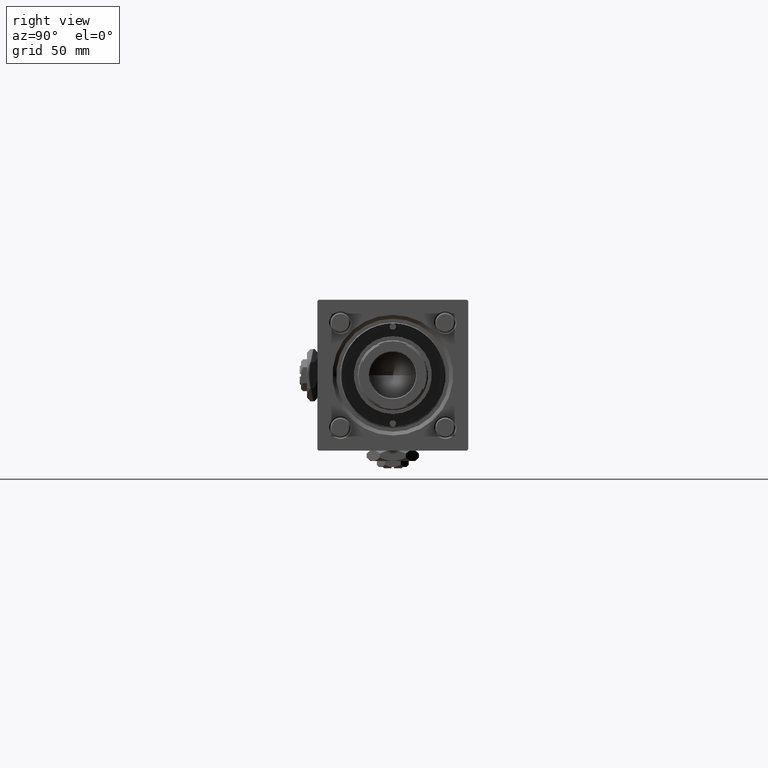
[diagram: clean part render]
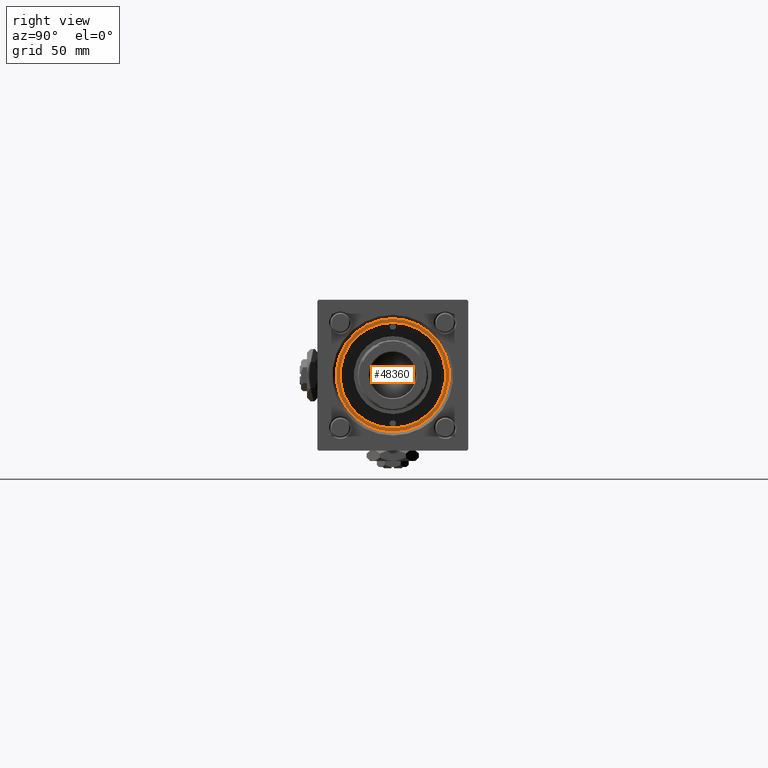
[diagram: same view with one face highlighted and labeled with its STEP entity id]
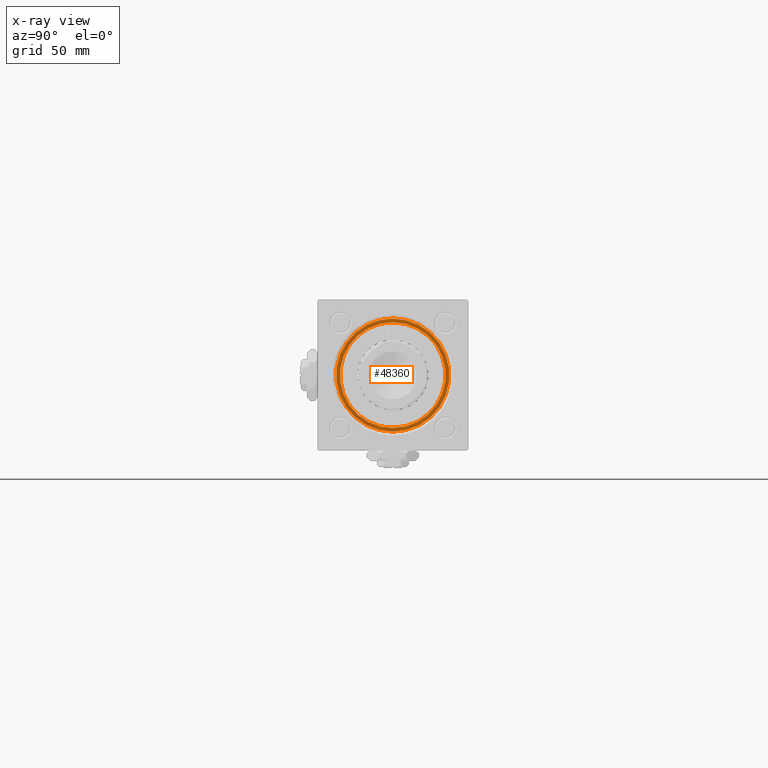
[diagram: x-ray of the same camera — body ghosted, the highlighted face saturated]
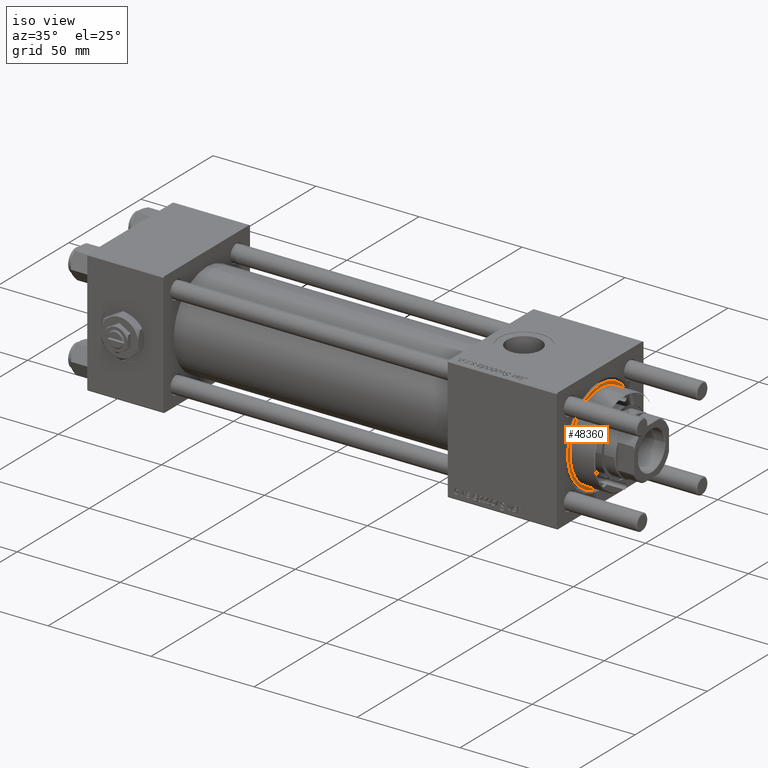
[diagram: same view with one face highlighted and labeled with its STEP entity id]
A machine part, right view. The second image highlights one B-rep face of the part: STEP entity #48360.
The next image is the same camera in x-ray: the body ghosted, the highlighted face saturated — about 0% of this face is hidden behind the body in this view.
A second angle (iso view) of the same face is appended — the face is thin or edge-on in the first view.
In plain terms, the highlighted planar face has unit normal (1, 0, 0).
Its self-contained STEP definition (entity closure, byte-faithful):
#895 = EDGE_CURVE ( 'NONE', #32073, #26112, #52382, .T. ) ;
#1696 = EDGE_CURVE ( 'NONE', #26112, #32073, #19960, .T. ) ;
#2712 = CARTESIAN_POINT ( 'NONE',  ( -21.00000000000000000, 0.000000000000000000, 28.69999999999999929 ) ) ;
#3218 = DIRECTION ( 'NONE',  ( 1.000000000000000000, 0.000000000000000000, 0.000000000000000000 ) ) ;
#7231 = CARTESIAN_POINT ( 'NONE',  ( 0.000000000000000000, 0.000000000000000000, 28.69999999999999929 ) ) ;
#9092 = VERTEX_POINT ( 'NONE', #50476 ) ;
#12176 = CARTESIAN_POINT ( 'NONE',  ( 0.000000000000000000, 0.000000000000000000, 28.69999999999999929 ) ) ;
#12517 = ORIENTED_EDGE ( 'NONE', *, *, #895, .F. ) ;
#13531 = CARTESIAN_POINT ( 'NONE',  ( 0.000000000000000000, 0.000000000000000000, 28.69999999999999929 ) ) ;
#18390 = CARTESIAN_POINT ( 'NONE',  ( 22.50000000000000355, 2.755455298081545172E-15, 28.69999999999999929 ) ) ;
#19960 = CIRCLE ( 'NONE', #27604, 21.00000000000000000 ) ;
#20357 = FACE_BOUND ( 'NONE', #45788, .T. ) ;
#20709 = AXIS2_PLACEMENT_3D ( 'NONE', #13531, #22196, #50214 ) ;
#22196 = DIRECTION ( 'NONE',  ( 0.000000000000000000, 0.000000000000000000, 1.000000000000000000 ) ) ;
#25443 = DIRECTION ( 'NONE',  ( 0.000000000000000000, 0.000000000000000000, 1.000000000000000000 ) ) ;
#26112 = VERTEX_POINT ( 'NONE', #49429 ) ;
#26682 = DIRECTION ( 'NONE',  ( 0.000000000000000000, 0.000000000000000000, 1.000000000000000000 ) ) ;
#27604 = AXIS2_PLACEMENT_3D ( 'NONE', #51881, #43830, #38766 ) ;
#30863 = DIRECTION ( 'NONE',  ( 1.000000000000000000, 0.000000000000000000, 0.000000000000000000 ) ) ;
#32073 = VERTEX_POINT ( 'NONE', #2712 ) ;
#33305 = AXIS2_PLACEMENT_3D ( 'NONE', #44276, #26682, #30863 ) ;
#34696 = DIRECTION ( 'NONE',  ( 1.000000000000000000, 0.000000000000000000, -0.000000000000000000 ) ) ;
#37097 = VERTEX_POINT ( 'NONE', #18390 ) ;
#38766 = DIRECTION ( 'NONE',  ( 1.000000000000000000, 0.000000000000000000, 0.000000000000000000 ) ) ;
#39683 = ORIENTED_EDGE ( 'NONE', *, *, #52674, .T. ) ;
#43631 = EDGE_LOOP ( 'NONE', ( #39683, #53327 ) ) ;
#43830 = DIRECTION ( 'NONE',  ( 0.000000000000000000, 0.000000000000000000, 1.000000000000000000 ) ) ;
#44276 = CARTESIAN_POINT ( 'NONE',  ( 0.000000000000000000, 0.000000000000000000, 28.69999999999999929 ) ) ;
#45788 = EDGE_LOOP ( 'NONE', ( #12517, #48145 ) ) ;
#48145 = ORIENTED_EDGE ( 'NONE', *, *, #1696, .F. ) ;
#48360 = ADVANCED_FACE ( 'NONE', ( #20357, #57079 ), #52590, .T. ) ;
#49142 = AXIS2_PLACEMENT_3D ( 'NONE', #7231, #25443, #34696 ) ;
#49429 = CARTESIAN_POINT ( 'NONE',  ( 21.00000000000000000, 2.571758278209441661E-15, 28.69999999999999929 ) ) ;
#50214 = DIRECTION ( 'NONE',  ( 1.000000000000000000, 0.000000000000000000, 0.000000000000000000 ) ) ;
#50229 = CIRCLE ( 'NONE', #20709, 22.50000000000000355 ) ;
#50476 = CARTESIAN_POINT ( 'NONE',  ( -22.50000000000000355, 0.000000000000000000, 28.69999999999999929 ) ) ;
#51881 = CARTESIAN_POINT ( 'NONE',  ( 0.000000000000000000, 0.000000000000000000, 28.69999999999999929 ) ) ;
#52382 = CIRCLE ( 'NONE', #54275, 21.00000000000000000 ) ;
#52590 = PLANE ( 'NONE',  #49142 ) ;
#52674 = EDGE_CURVE ( 'NONE', #9092, #37097, #50229, .T. ) ;
#53327 = ORIENTED_EDGE ( 'NONE', *, *, #58490, .T. ) ;
#54275 = AXIS2_PLACEMENT_3D ( 'NONE', #12176, #57544, #3218 ) ;
#57079 = FACE_OUTER_BOUND ( 'NONE', #43631, .T. ) ;
#57544 = DIRECTION ( 'NONE',  ( 0.000000000000000000, 0.000000000000000000, 1.000000000000000000 ) ) ;
#58042 = CIRCLE ( 'NONE', #33305, 22.50000000000000355 ) ;
#58490 = EDGE_CURVE ( 'NONE', #37097, #9092, #58042, .T. ) ;